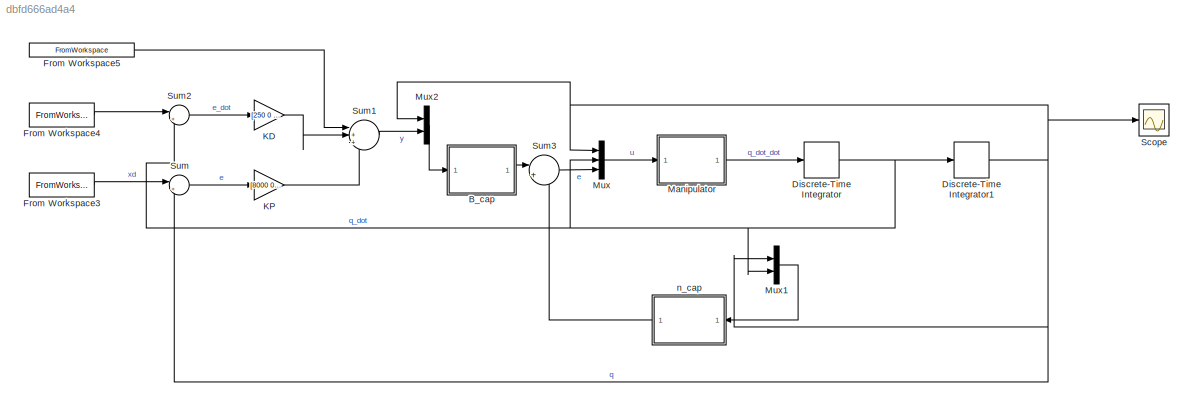
MODEL slx_dbfd666ad4a4
KIND model
CONFIG AbsTol = auto
CONFIG EnableMultiTasking = off
CONFIG FixedStep = auto
CONFIG MaxStep = auto
CONFIG MinStep = auto
CONFIG RelTol = 1e-3
CONFIG SampleTimeConstraint = Unconstrained
CONFIG Solver = VariableStepAuto
CONFIG SolverName = VariableStepAuto
CONFIG StartTime = 0.0
CONFIG StopTime = 4
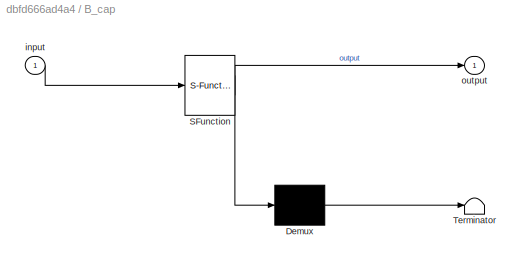
BLOCK [SubSystem] B_cap
  ErrorFcn = Stateflow.Translate.translate
  PermitHierarchicalResolution = ExplicitOnly
  Ports = [1, 1]
  RequestExecContextInheritance = off
  SFBlockType = MATLAB Function
  TreatAsAtomicUnit = on
BLOCK [Demux] B_cap/ Demux 
  Outputs = 1
  Ports = [1, 1]
BLOCK [S-Function] B_cap/ SFunction 
  EnableBusSupport = on
  FunctionName = sf_sfun
  PortCounts = [1 2]
  Ports = [1, 2]
  SFcnIsStateOwnerBlock = off
  SFunctionDeploymentMode = off
  Tag = Stateflow S-Function 2
BLOCK [Terminator] B_cap/ Terminator 
BLOCK [Inport] B_cap/input
  IconDisplay = Port number
BLOCK [Outport] B_cap/output
  IconDisplay = Port number
BLOCK [DiscreteIntegrator] Discrete-Time Integrator
  ICPrevOutput = DiscIntNeverNeededParam
  ICPrevScaledInput = DiscIntNeverNeededParam
  InitialCondition = q0_dot
  InitialConditionSetting = Auto
  Ports = [1, 1]
  SampleTime = Tc
BLOCK [DiscreteIntegrator] Discrete-Time Integrator1
  ICPrevOutput = DiscIntNeverNeededParam
  ICPrevScaledInput = DiscIntNeverNeededParam
  InitialCondition = q0
  InitialConditionSetting = Auto
  Ports = [1, 1]
  SampleTime = Tc
BLOCK [FromWorkspace] From Workspace3
  SampleTime = Tc
  VariableName = [t pd theta_d]
  ZeroCross = on
BLOCK [FromWorkspace] From Workspace4
  SampleTime = Tc
  VariableName = [t pd_dot theta_d_dot]
  ZeroCross = on
BLOCK [FromWorkspace] From Workspace5
  SampleTime = Tc
  VariableName = [t pd_dot_dot theta_d_dot_dot]
  ZeroCross = on
BLOCK [Gain] KD
  Gain = [250 0 0 0;0 550 0 0;0 0 1000 0;0 0 0 1000]
  Multiplication = Matrix(K*u) (u vector)
  OutDataTypeStr = Inherit: Inherit via internal rule
  ParamDataTypeStr = Inherit: Inherit via internal rule
  SaturateOnIntegerOverflow = off
BLOCK [Gain] KP
  Gain = [8000 0 0 0;0 8000 0 0;0 0 80000 0;0 0 0 80000]
  Multiplication = Matrix(K*u) (u vector)
  OutDataTypeStr = Inherit: Inherit via internal rule
  ParamDataTypeStr = Inherit: Inherit via internal rule
  SaturateOnIntegerOverflow = off
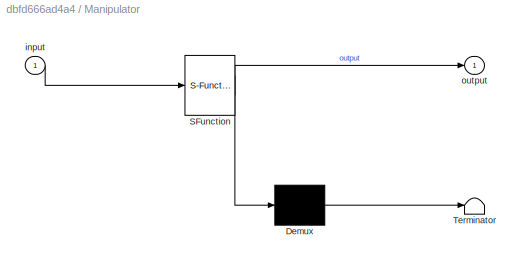
BLOCK [SubSystem] Manipulator
  ErrorFcn = Stateflow.Translate.translate
  PermitHierarchicalResolution = ExplicitOnly
  Ports = [1, 1]
  RequestExecContextInheritance = off
  SFBlockType = MATLAB Function
  TreatAsAtomicUnit = on
BLOCK [Demux] Manipulator/ Demux 
  Outputs = 1
  Ports = [1, 1]
BLOCK [S-Function] Manipulator/ SFunction 
  EnableBusSupport = on
  FunctionName = sf_sfun
  PortCounts = [1 2]
  Ports = [1, 2]
  SFcnIsStateOwnerBlock = off
  SFunctionDeploymentMode = off
  Tag = Stateflow S-Function 1
BLOCK [Terminator] Manipulator/ Terminator 
BLOCK [Inport] Manipulator/input
  IconDisplay = Port number
BLOCK [Outport] Manipulator/output
  IconDisplay = Port number
BLOCK [Mux] Mux
  DisplayOption = bar
  Inputs = 3
  Ports = [3, 1]
BLOCK [Mux] Mux1
  DisplayOption = bar
  Inputs = 2
  Ports = [2, 1]
BLOCK [Mux] Mux2
  DisplayOption = bar
  Inputs = 2
  Ports = [2, 1]
BLOCK [Scope] Scope
  Floating = off
  NumInputPorts = 1
  Ports = [1]
  ScopeSpecificationString = Simulink.scopes.TimeScopeBlockCfg('CurrentConfiguration', extmgr.ConfigurationSet(extmgr.Configuration('Core','General UI',true),extmgr.Configuration('Core','Source UI',true),extmgr.Configuration('Sources','WiredSimulink',true,'DataLoggingVariableName','ScopeData1'),extmgr.Configuration('Visuals','Time Domain',true,'SerializedDisplays',{struct('MinYLimReal','-1.8843','MaxYLimReal','4.08861','YLabe...<+1378ch>
BLOCK [Sum] Sum
  IconShape = round
  InputSameDT = off
  Inputs = |+-
  OutDataTypeStr = Inherit: Inherit via internal rule
  Ports = [2, 1]
  SaturateOnIntegerOverflow = off
BLOCK [Sum] Sum1
  IconShape = round
  InputSameDT = off
  Inputs = |+++
  OutDataTypeStr = Inherit: Inherit via internal rule
  Ports = [3, 1]
  SaturateOnIntegerOverflow = off
BLOCK [Sum] Sum2
  IconShape = round
  InputSameDT = off
  Inputs = |+-
  OutDataTypeStr = Inherit: Inherit via internal rule
  Ports = [2, 1]
  SaturateOnIntegerOverflow = off
BLOCK [Sum] Sum3
  IconShape = round
  InputSameDT = off
  Inputs = |+-
  OutDataTypeStr = Inherit: Inherit via internal rule
  Ports = [2, 1]
  SaturateOnIntegerOverflow = off
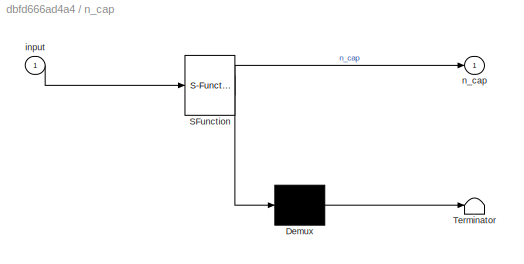
BLOCK [SubSystem] n_cap
  ErrorFcn = Stateflow.Translate.translate
  PermitHierarchicalResolution = ExplicitOnly
  Ports = [1, 1]
  RequestExecContextInheritance = off
  SFBlockType = MATLAB Function
  TreatAsAtomicUnit = on
BLOCK [Demux] n_cap/ Demux 
  Outputs = 1
  Ports = [1, 1]
BLOCK [S-Function] n_cap/ SFunction 
  EnableBusSupport = on
  FunctionName = sf_sfun
  PortCounts = [1 2]
  Ports = [1, 2]
  SFcnIsStateOwnerBlock = off
  SFunctionDeploymentMode = off
  Tag = Stateflow S-Function 3
BLOCK [Terminator] n_cap/ Terminator 
BLOCK [Inport] n_cap/input
  IconDisplay = Port number
BLOCK [Outport] n_cap/n_cap
  IconDisplay = Port number
LINE B_cap:1 -> Sum3:1
NET Discrete-Time Integrator1:1 -> Mux1:1, Mux2:1, Mux:1, Scope:1, Sum:2
NET Discrete-Time Integrator:1 -> Discrete-Time Integrator1:1, Mux1:2, Mux:2, Sum2:2
LINE From Workspace3:1 -> Sum:1
LINE From Workspace4:1 -> Sum2:1
LINE From Workspace5:1 -> Sum1:1
LINE KD:1 -> Sum1:2
LINE KP:1 -> Sum1:3
LINE Manipulator:1 -> Discrete-Time Integrator:1
LINE Mux1:1 -> n_cap:1
LINE Mux2:1 -> B_cap:1
LINE Mux:1 -> Manipulator:1
LINE Sum1:1 -> Mux2:2
LINE Sum2:1 -> KD:1
LINE Sum3:1 -> Mux:3
LINE Sum:1 -> KP:1
LINE n_cap:1 -> Sum3:2
note: NET lines group one-source signal fan-out (src -> all destinations, sorted); 1:1 wires keep LINE
CHART Manipulator states=1 transitions=1
  STATE_LABEL 'eML_blk_kernel()'
  STATE_LABEL 'SCRIPT:\nfunction output = Manipulator(input)\n% Part 2 manipulator\n    theta1 = input(1,:);\n    theta2 = input(2,:);\n    d3 = input(3,:);\n    theta4 = input(4,:);\n    theta1_dot = input(5,:);\n    theta2_dot = input(6,:);\n    d3_dot = input(7,:);\n    theta4_dot = input(8,:);\n    u1 = input(9,:);\n    u2 = input(10,:);\n    u3 = input(11,:);\n    u4 = input(12,:);\n    m_l1 = 25;\n    m_l2 = 25;\n    m_l3 ...<+1590ch>'
CHART B_cap states=1 transitions=1
  STATE_LABEL 'eML_blk_kernel()'
  STATE_LABEL 'SCRIPT:\nfunction output  = B_cap(input)\n    theta2=input(2,:);\n    y1=input(5,:);\n    y2=input(6,:);\n    y3=input(7,:);    \n    y4=input(8,:);\n    m_l1 = 25;\n    m_l2 = 25;\n    m_l3 = 10;\n    m_l4 = 0;\n    I_l1 = 5;\n    I_l2 = 5;\n    I_l4 = 1;\n    I_m1 = 0.0001;\n    I_m2 = 0.0001;\n    I_m3 = 0.01;\n    I_m4 = 0.005;\n    l_1 = 0.25;\n    l_2 = 0.25;\n    k_r1 = 1;\n    k_r2 = 1;\n    k_r3 = 50;\n    k_r4...<+678ch>'
CHART n_cap states=1 transitions=1
  STATE_LABEL 'eML_blk_kernel()'
  STATE_LABEL 'SCRIPT:\nfunction n_cap  = n_cap(input)\n    theta2=input(2,:);\n    theta1_dot=input(5,:);\n    theta2_dot=input(6,:);\n    d3_dot=input(7,:);\n    theta4_dot=input(8,:);\n    m_l2 = 25;\n    m_l3 = 10;\n    m_l4 = 0;\n    l_2 = 0.25;\n    k_r1 = 1;\n    k_r2 = 1;\n    k_r3 = 50;\n    k_r4 = 20;\n    g = 9.8;\n    Fv_1 = 0.0001;\n    Fv_2 = 0.0001;\n    Fv_3 = 0.01;\n    Fv_4 = 0.005;\n    C_cap=[(-l_2*m_l2*sin(thet...<+438ch>'
